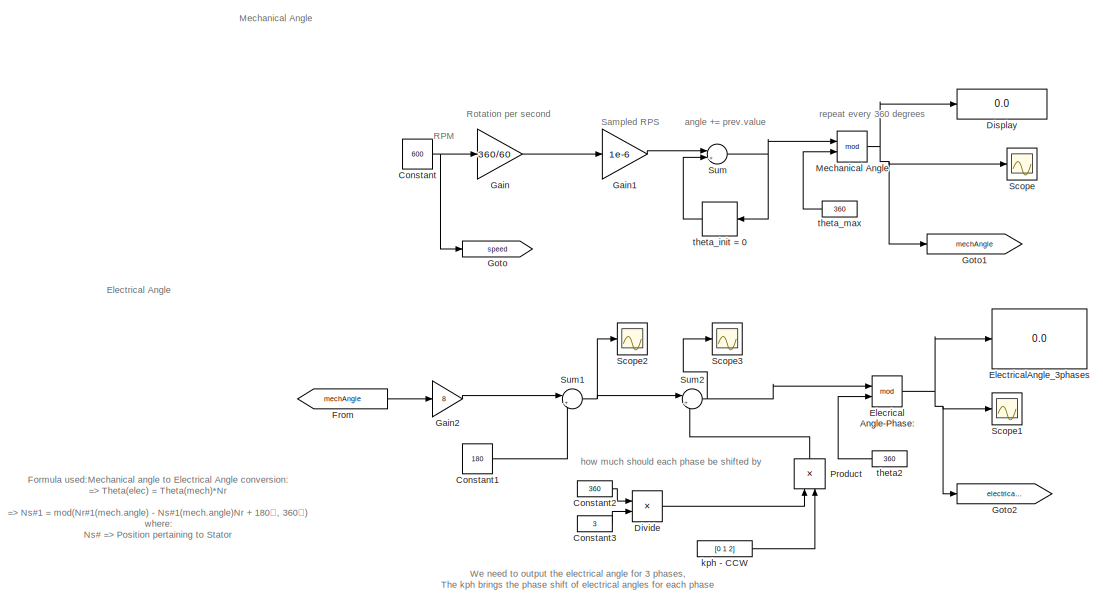
[diagram: root canvas - part 1/4, top left region]
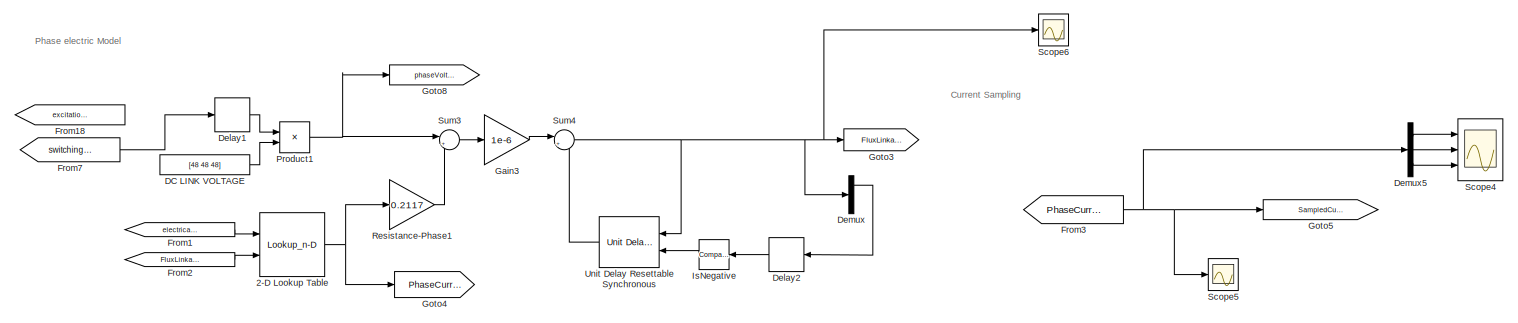
[diagram: root canvas - part 2/4, middle left region]
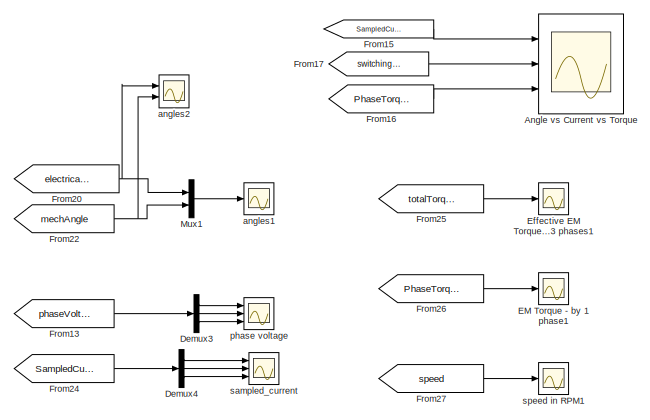
[diagram: root canvas - part 3/4, bottom right region]
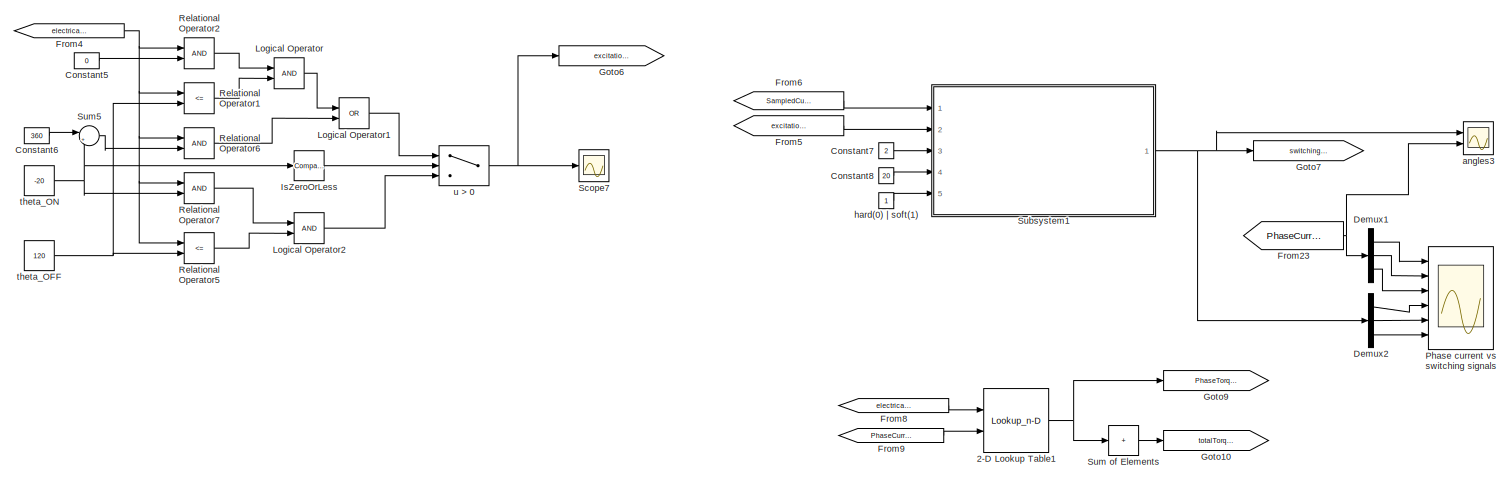
[diagram: root canvas - part 4/4, bottom center region]
MODEL slx_dab36eaa7ba9
KIND model
CONFIG AbsTol = auto
CONFIG EnableMultiTasking = off
CONFIG FixedStep = 1
CONFIG MaxStep = 1e-6
CONFIG MinStep = auto
CONFIG RelTol = 1e-6
CONFIG SampleTimeConstraint = Unconstrained
CONFIG SolverName = VariableStepAuto
CONFIG StartTime = 0.0
CONFIG StopTime = 1
BLOCK [Lookup_n-D] 2-D Lookup Table
  BreakpointsForDimension1 = angleArray
  BreakpointsForDimension2 = fluxdiv
  InputPortMap = u0,u1
  InternalRulePriority = Speed
  Ports = [2, 1]
  RndMeth = Simplest
  Table = iLUT
BLOCK [Lookup_n-D] 2-D Lookup Table1
  BreakpointsForDimension1 = angleArray
  BreakpointsForDimension2 = currentArray
  InputPortMap = u0,u1
  InternalRulePriority = Speed
  Ports = [2, 1]
  RndMeth = Simplest
  Table = torqueMatrix
BLOCK [Scope] Angle vs Current vs Torque
  Floating = off
  NumInputPorts = 3
  Ports = [3]
  ScopeSpecificationString = Simulink.scopes.TimeScopeBlockCfg('CurrentConfiguration', extmgr.ConfigurationSet(extmgr.Configuration('Core','General UI',true,'FigureColor',[0.831372549019608 0.815686274509804 0.784313725490196]),extmgr.Configuration('Core','Source UI',true),extmgr.Configuration('Sources','WiredSimulink',true,'DataLoggingVariableName','ScopeData1'),extmgr.Configuration('Visuals','Time Domain',true,'SerializedDi...<+3361ch>
BLOCK [Constant] Constant
  SampleTime = 1e-6
  Value = 600
BLOCK [Constant] Constant1
  SampleTime = 1e-6
  Value = 180
BLOCK [Constant] Constant2
  SampleTime = 1e-6
  Value = 360
BLOCK [Constant] Constant3
  SampleTime = 1e-6
  Value = 3
BLOCK [Constant] Constant5
  Value = 0
BLOCK [Constant] Constant6
  Value = 360
BLOCK [Constant] Constant7
  Value = 2
BLOCK [Constant] Constant8
  Value = 20
BLOCK [Constant] DC LINK VOLTAGE
  Value = [48 48 48]
BLOCK [Delay] Delay1
  DelayLength = 1
  InputPortMap = u0
  Ports = [1, 1]
BLOCK [Delay] Delay2
  DelayLength = 1
  InputPortMap = u0
  NameLocation = top
  Ports = [1, 1]
BLOCK [Demux] Demux
  Outputs = 3
  Ports = [1, 3]
BLOCK [Demux] Demux1
  Outputs = 3
  Ports = [1, 3]
BLOCK [Demux] Demux2
  Outputs = 3
  Ports = [1, 3]
BLOCK [Demux] Demux3
  Outputs = 3
  Ports = [1, 3]
BLOCK [Demux] Demux4
  Outputs = 3
  Ports = [1, 3]
BLOCK [Demux] Demux5
  Outputs = 3
  Ports = [1, 3]
BLOCK [Display] Display
  Decimation = 1
  Ports = [1]
BLOCK [Product] Divide
  Inputs = */
  Ports = [2, 1]
BLOCK [Scope] EM Torque - by 1 phase1
  Floating = off
  NumInputPorts = 1
  Ports = [1]
  ScopeSpecificationString = Simulink.scopes.TimeScopeBlockCfg('CurrentConfiguration', extmgr.ConfigurationSet(extmgr.Configuration('Core','General UI',true,'FigureColor',[0.831372549019608 0.815686274509804 0.784313725490196]),extmgr.Configuration('Core','Source UI',true),extmgr.Configuration('Sources','WiredSimulink',true,'DataLoggingVariableName','ScopeData9'),extmgr.Configuration('Visuals','Time Domain',true,'SerializedDi...<+1835ch>
BLOCK [Scope] Effective EM Torque - by 3 phases1
  Floating = off
  NumInputPorts = 1
  Ports = [1]
  ScopeSpecificationString = Simulink.scopes.TimeScopeBlockCfg('CurrentConfiguration', extmgr.ConfigurationSet(extmgr.Configuration('Core','General UI',true),extmgr.Configuration('Core','Source UI',true),extmgr.Configuration('Sources','WiredSimulink',true,'DataLoggingVariableName','ScopeData10'),extmgr.Configuration('Visuals','Time Domain',true,'SerializedDisplays',{struct('MinYLimReal','-20.03435','MaxYLimReal','20.39167','Y...<+1429ch>
BLOCK [Math] Elecrical Angle-Phase:
  Operator = mod
  Ports = [2, 1]
BLOCK [Display] ElectricalAngle_3phases
  Decimation = 1
  Ports = [1]
BLOCK [From] From
  GotoTag = mechAngle
BLOCK [From] From1
  GotoTag = electricalAngle
BLOCK [From] From13
  GotoTag = phaseVoltage
BLOCK [From] From15
  GotoTag = SampledCurrent
BLOCK [From] From16
  GotoTag = PhaseTorque
BLOCK [From] From17
  GotoTag = switchingSignal
BLOCK [From] From18
  GotoTag = excitationalSignal
BLOCK [From] From2
  GotoTag = FluxLinkage
BLOCK [From] From20
  GotoTag = electricalAngle
BLOCK [From] From22
  GotoTag = mechAngle
BLOCK [From] From23
  GotoTag = PhaseCurrent
BLOCK [From] From24
  GotoTag = SampledCurrent
BLOCK [From] From25
  GotoTag = totalTorque
BLOCK [From] From26
  GotoTag = PhaseTorque
BLOCK [From] From27
  GotoTag = speed
BLOCK [From] From3
  GotoTag = PhaseCurrent
BLOCK [From] From4
  GotoTag = electricalAngle
BLOCK [From] From5
  GotoTag = excitationalSignal
BLOCK [From] From6
  GotoTag = SampledCurrent
BLOCK [From] From7
  GotoTag = switchingSignal
BLOCK [From] From8
  GotoTag = electricalAngle
BLOCK [From] From9
  GotoTag = PhaseCurrent
BLOCK [Gain] Gain
  Gain = 360/60
BLOCK [Gain] Gain1
  Gain = 1e-6
BLOCK [Gain] Gain2
  Gain = 8
BLOCK [Gain] Gain3
  Gain = 1e-6
BLOCK [Goto] Goto
  GotoTag = speed
BLOCK [Goto] Goto1
  GotoTag = mechAngle
BLOCK [Goto] Goto10
  GotoTag = totalTorque
BLOCK [Goto] Goto2
  GotoTag = electricalAngle
BLOCK [Goto] Goto3
  GotoTag = FluxLinkage
BLOCK [Goto] Goto4
  GotoTag = PhaseCurrent
BLOCK [Goto] Goto5
  GotoTag = SampledCurrent
BLOCK [Goto] Goto6
  GotoTag = excitationalSignal
BLOCK [Goto] Goto7
  GotoTag = switchingSignal
BLOCK [Goto] Goto8
  GotoTag = phaseVoltage
BLOCK [Goto] Goto9
  GotoTag = PhaseTorque
BLOCK [Reference] IsNegative  REF=simulink/Logic and Bit
Operations/Compare
To Zero
  NameLocation = top
  Ports = [1, 1]
  SourceBlock = simulink/Logic and Bit\nOperations/Compare\nTo Zero
  SourceProductBaseCode = SL
  SourceType = Compare To Zero
BLOCK [Reference] IsZeroOrLess  REF=simulink/Logic and Bit
Operations/Compare
To Zero
  Ports = [1, 1]
  SourceBlock = simulink/Logic and Bit\nOperations/Compare\nTo Zero
  SourceProductBaseCode = SL
  SourceType = Compare To Zero
BLOCK [Logic] Logical Operator
  AllPortsSameDT = off
  OutDataTypeStr = boolean
  Ports = [2, 1]
BLOCK [Logic] Logical Operator1
  AllPortsSameDT = off
  Operator = OR
  OutDataTypeStr = boolean
  Ports = [2, 1]
BLOCK [Logic] Logical Operator2
  AllPortsSameDT = off
  OutDataTypeStr = boolean
  Ports = [2, 1]
BLOCK [Math] Mechanical Angle
  Operator = mod
  Ports = [2, 1]
BLOCK [Mux] Mux1
  DisplayOption = bar
  Inputs = 2
  Ports = [2, 1]
BLOCK [Scope] Phase current vs switching signals
  Floating = off
  NameLocation = right
  NumInputPorts = 6
  Ports = [6]
  ScopeSpecificationString = Simulink.scopes.TimeScopeBlockCfg('CurrentConfiguration', extmgr.ConfigurationSet(extmgr.Configuration('Core','General UI',true),extmgr.Configuration('Core','Source UI',true),extmgr.Configuration('Sources','WiredSimulink',true,'DataLoggingVariableName','ScopeData12'),extmgr.Configuration('Visuals','Time Domain',true,'SerializedDisplays',{struct('MinYLimReal','-2.61314','MaxYLimReal','23.08169','YL...<+4829ch>
BLOCK [Product] Product
  NameLocation = right
  Ports = [2, 1]
BLOCK [Product] Product1
  Ports = [2, 1]
BLOCK [RelationalOperator] Relational Operator1
  InputSameDT = off
  Operator = <=
  OutDataTypeStr = boolean
  Ports = [2, 1]
  RndMeth = Simplest
BLOCK [RelationalOperator] Relational Operator2
  InputSameDT = off
  OutDataTypeStr = boolean
  Ports = [2, 1]
  RndMeth = Simplest
BLOCK [RelationalOperator] Relational Operator5
  InputSameDT = off
  Operator = <=
  OutDataTypeStr = boolean
  Ports = [2, 1]
  RndMeth = Simplest
BLOCK [RelationalOperator] Relational Operator6
  InputSameDT = off
  OutDataTypeStr = boolean
  Ports = [2, 1]
  RndMeth = Simplest
BLOCK [RelationalOperator] Relational Operator7
  InputSameDT = off
  OutDataTypeStr = boolean
  Ports = [2, 1]
  RndMeth = Simplest
BLOCK [Gain] Resistance-Phase1
  Gain = 0.2117
BLOCK [Scope] Scope
  Floating = off
  NumInputPorts = 1
  Ports = [1]
  ScopeSpecificationString = Simulink.scopes.TimeScopeBlockCfg('CurrentConfiguration', extmgr.ConfigurationSet(extmgr.Configuration('Core','General UI',true),extmgr.Configuration('Core','Source UI',true),extmgr.Configuration('Sources','WiredSimulink',true),extmgr.Configuration('Visuals','Time Domain',true,'SerializedDisplays',{struct('MinYLimReal','-44.9991','MaxYLimReal','404.9919','YLabelReal','','MinYLimMag','0.00000','Max...<+1619ch>
BLOCK [Scope] Scope1
  Floating = off
  NumInputPorts = 1
  Ports = [1]
  ScopeSpecificationString = Simulink.scopes.TimeScopeBlockCfg('CurrentConfiguration', extmgr.ConfigurationSet(extmgr.Configuration('Core','General UI',true),extmgr.Configuration('Core','Source UI',true),extmgr.Configuration('Sources','WiredSimulink',true,'DataLoggingVariableName','ScopeData1'),extmgr.Configuration('Visuals','Time Domain',true,'SerializedDisplays',{struct('MinYLimReal','-44.9991','MaxYLimReal','404.9919','YLa...<+1491ch>
BLOCK [Scope] Scope2
  Floating = off
  NumInputPorts = 1
  Ports = [1]
  ScopeSpecificationString = Simulink.scopes.TimeScopeBlockCfg('CurrentConfiguration', extmgr.ConfigurationSet(extmgr.Configuration('Core','General UI',true),extmgr.Configuration('Core','Source UI',true),extmgr.Configuration('Sources','WiredSimulink',true,'DataLoggingVariableName','ScopeData1'),extmgr.Configuration('Visuals','Time Domain',true,'SerializedDisplays',{struct('MinYLimReal','-44.9991','MaxYLimReal','3059.9424','YL...<+1455ch>
BLOCK [Scope] Scope3
  Floating = off
  NumInputPorts = 1
  Ports = [1]
  ScopeSpecificationString = Simulink.scopes.TimeScopeBlockCfg('CurrentConfiguration', extmgr.ConfigurationSet(extmgr.Configuration('Core','General UI',true),extmgr.Configuration('Core','Source UI',true),extmgr.Configuration('Sources','WiredSimulink',true,'DataLoggingVariableName','ScopeData2'),extmgr.Configuration('Visuals','Time Domain',true,'SerializedDisplays',{struct('MinYLimReal','2633.25256','MaxYLimReal','2909.82092',...<+1478ch>
BLOCK [Scope] Scope4
  Floating = off
  NumInputPorts = 3
  Ports = [3]
  ScopeSpecificationString = Simulink.scopes.TimeScopeBlockCfg('CurrentConfiguration', extmgr.ConfigurationSet(extmgr.Configuration('Core','General UI',true),extmgr.Configuration('Core','Source UI',true),extmgr.Configuration('Sources','WiredSimulink',true,'DataLoggingVariableName','ScopeData1'),extmgr.Configuration('Visuals','Time Domain',true,'SerializedDisplays',{struct('MinYLimReal','-476.5626','MaxYLimReal','4289.06342','...<+2873ch>
BLOCK [Scope] Scope5
  Floating = off
  NumInputPorts = 1
  Ports = [1]
  ScopeSpecificationString = Simulink.scopes.TimeScopeBlockCfg('CurrentConfiguration', extmgr.ConfigurationSet(extmgr.Configuration('Core','General UI',true),extmgr.Configuration('Core','Source UI',true),extmgr.Configuration('Sources','WiredSimulink',true,'DataLoggingVariableName','ScopeData1'),extmgr.Configuration('Visuals','Time Domain',true,'SerializedDisplays',{struct('MinYLimReal','-2.63396','MaxYLimReal','23.08929','YLa...<+1523ch>
BLOCK [Scope] Scope6
  Floating = off
  NumInputPorts = 1
  Ports = [1]
  ScopeSpecificationString = Simulink.scopes.TimeScopeBlockCfg('CurrentConfiguration', extmgr.ConfigurationSet(extmgr.Configuration('Core','General UI',true,'FigureColor',[0.8 0.8 0.8]),extmgr.Configuration('Core','Source UI',true),extmgr.Configuration('Sources','WiredSimulink',true,'DataLoggingVariableName','ScopeData4'),extmgr.Configuration('Visuals','Time Domain',true,'SerializedDisplays',{struct('MinYLimReal','-0.73701','...<+1650ch>
BLOCK [Scope] Scope7
  Floating = off
  NumInputPorts = 1
  Ports = [1]
  ScopeSpecificationString = Simulink.scopes.TimeScopeBlockCfg('CurrentConfiguration', extmgr.ConfigurationSet(extmgr.Configuration('Core','General UI',true,'FigureColor',[0.8 0.8 0.8]),extmgr.Configuration('Core','Source UI',true),extmgr.Configuration('Sources','WiredSimulink',true,'DataLoggingVariableName','ScopeData5'),extmgr.Configuration('Visuals','Time Domain',true,'SerializedDisplays',{struct('MinYLimReal','-0.00251','...<+1654ch>
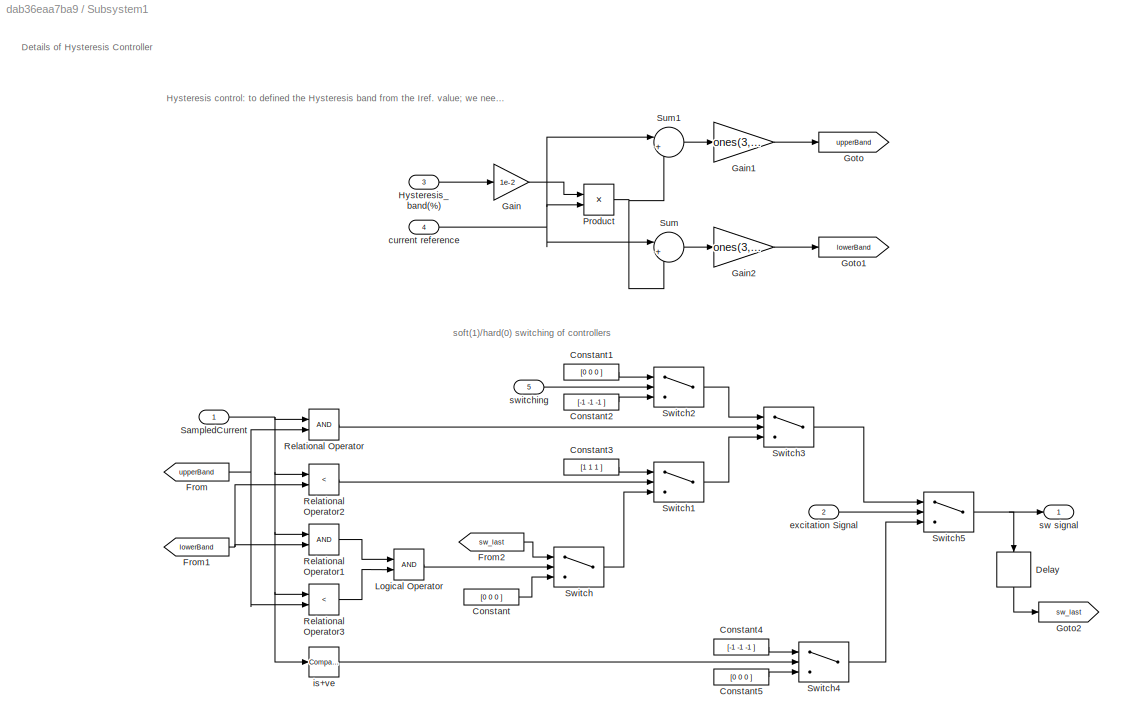
BLOCK [SubSystem] Subsystem1
  Ports = [5, 1]
  RequestExecContextInheritance = off
BLOCK [Constant] Subsystem1/Constant
  Value = [0 0 0 ]
BLOCK [Constant] Subsystem1/Constant1
  Value = [0 0 0 ]
BLOCK [Constant] Subsystem1/Constant2
  Value = [-1 -1 -1 ]
BLOCK [Constant] Subsystem1/Constant3
  Value = [1 1 1 ]
BLOCK [Constant] Subsystem1/Constant4
  Value = [-1 -1 -1 ]
BLOCK [Constant] Subsystem1/Constant5
  Value = [0 0 0 ]
BLOCK [Delay] Subsystem1/Delay
  DelayLength = 1
  InputPortMap = u0
  NameLocation = left
  Ports = [1, 1]
BLOCK [From] Subsystem1/From
  GotoTag = upperBand
BLOCK [From] Subsystem1/From1
  GotoTag = lowerBand
BLOCK [From] Subsystem1/From2
  GotoTag = sw_last
  NameLocation = top
BLOCK [Gain] Subsystem1/Gain
  Gain = 1e-2
BLOCK [Gain] Subsystem1/Gain1
  Gain = ones(3,1)
BLOCK [Gain] Subsystem1/Gain2
  Gain = ones(3,1)
BLOCK [Goto] Subsystem1/Goto
  GotoTag = upperBand
BLOCK [Goto] Subsystem1/Goto1
  GotoTag = lowerBand
BLOCK [Goto] Subsystem1/Goto2
  GotoTag = sw_last
BLOCK [Inport] Subsystem1/Hysteresis_band(%)
  Port = 3
BLOCK [Logic] Subsystem1/Logical Operator
  AllPortsSameDT = off
  OutDataTypeStr = boolean
  Ports = [2, 1]
BLOCK [Product] Subsystem1/Product
  Ports = [2, 1]
BLOCK [RelationalOperator] Subsystem1/Relational Operator
  InputSameDT = off
  OutDataTypeStr = boolean
  Ports = [2, 1]
  RndMeth = Simplest
BLOCK [RelationalOperator] Subsystem1/Relational Operator1
  InputSameDT = off
  OutDataTypeStr = boolean
  Ports = [2, 1]
  RndMeth = Simplest
BLOCK [RelationalOperator] Subsystem1/Relational Operator2
  InputSameDT = off
  Operator = <
  OutDataTypeStr = boolean
  Ports = [2, 1]
  RndMeth = Simplest
BLOCK [RelationalOperator] Subsystem1/Relational Operator3
  InputSameDT = off
  Operator = <
  OutDataTypeStr = boolean
  Ports = [2, 1]
  RndMeth = Simplest
BLOCK [Inport] Subsystem1/SampledCurrent
BLOCK [Sum] Subsystem1/Sum
  Inputs = |+-
  Ports = [2, 1]
BLOCK [Sum] Subsystem1/Sum1
  Inputs = |++
  NameLocation = top
  Ports = [2, 1]
BLOCK [Switch] Subsystem1/Switch
  Criteria = u2 > Threshold
  InputSameDT = off
  NameLocation = top
  SaturateOnIntegerOverflow = off
BLOCK [Switch] Subsystem1/Switch1
  Criteria = u2 > Threshold
  InputSameDT = off
  SaturateOnIntegerOverflow = off
BLOCK [Switch] Subsystem1/Switch2
  Criteria = u2 > Threshold
  InputSameDT = off
  SaturateOnIntegerOverflow = off
BLOCK [Switch] Subsystem1/Switch3
  Criteria = u2 > Threshold
  InputSameDT = off
  SaturateOnIntegerOverflow = off
BLOCK [Switch] Subsystem1/Switch4
  Criteria = u2 > Threshold
  InputSameDT = off
  SaturateOnIntegerOverflow = off
BLOCK [Switch] Subsystem1/Switch5
  Criteria = u2 > Threshold
  InputSameDT = off
  SaturateOnIntegerOverflow = off
BLOCK [Inport] Subsystem1/current reference
  Port = 4
BLOCK [Inport] Subsystem1/excitation Signal
  Port = 2
BLOCK [Reference] Subsystem1/is+ve  REF=simulink/Logic and Bit
Operations/Compare
To Zero
  Ports = [1, 1]
  SourceBlock = simulink/Logic and Bit\nOperations/Compare\nTo Zero
  SourceProductBaseCode = SL
  SourceType = Compare To Zero
BLOCK [Outport] Subsystem1/sw signal
BLOCK [Inport] Subsystem1/switching
  Port = 5
BLOCK [Sum] Sum
  Inputs = |++
  Ports = [2, 1]
BLOCK [Sum] Sum of Elements
  IconShape = rectangular
  Inputs = +
  Ports = [1, 1]
BLOCK [Sum] Sum1
  Inputs = |++
  Ports = [2, 1]
BLOCK [Sum] Sum2
  Inputs = |++
  Ports = [2, 1]
BLOCK [Sum] Sum3
  Inputs = |+-
  Ports = [2, 1]
  RndMeth = Round
BLOCK [Sum] Sum4
  Inputs = |++
  Ports = [2, 1]
BLOCK [Sum] Sum5
  Inputs = |++
  Ports = [2, 1]
BLOCK [Reference] Unit Delay Resettable Synchronous  REF=hdlsllib/Discrete/Unit Delay Resettable
Synchronous
  NameLocation = top
  Ports = [2, 1]
  SourceBlock = hdlsllib/Discrete/Unit Delay Resettable\nSynchronous
  SourceProductBaseCode = SL
  SourceType = Unit Delay Resettable Synchronous
BLOCK [Scope] angles1
  Floating = off
  NumInputPorts = 1
  Ports = [1]
  ScopeSpecificationString = Simulink.scopes.TimeScopeBlockCfg('CurrentConfiguration', extmgr.ConfigurationSet(extmgr.Configuration('Core','General UI',true),extmgr.Configuration('Core','Source UI',true),extmgr.Configuration('Sources','WiredSimulink',true,'DataLoggingVariableName','ScopeData11'),extmgr.Configuration('Visuals','Time Domain',true,'SerializedDisplays',{struct('MinYLimReal','-45.00000','MaxYLimReal','405.00000','...<+1513ch>
BLOCK [Scope] angles2
  Floating = off
  NumInputPorts = 2
  Ports = [2]
  ScopeSpecificationString = Simulink.scopes.TimeScopeBlockCfg('CurrentConfiguration', extmgr.ConfigurationSet(extmgr.Configuration('Core','General UI',true,'FigureColor',[0.8 0.8 0.8]),extmgr.Configuration('Core','Source UI',true),extmgr.Configuration('Sources','WiredSimulink',true,'DataLoggingVariableName','ScopeData2'),extmgr.Configuration('Visuals','Time Domain',true,'SerializedDisplays',{struct('MinYLimReal','-45.00000',...<+2312ch>
BLOCK [Scope] angles3
  Floating = off
  NumInputPorts = 2
  Ports = [2]
  ScopeSpecificationString = Simulink.scopes.TimeScopeBlockCfg('CurrentConfiguration', extmgr.ConfigurationSet(extmgr.Configuration('Core','General UI',true,'FigureColor',[0.8 0.8 0.8]),extmgr.Configuration('Core','Source UI',true),extmgr.Configuration('Sources','WiredSimulink',true,'DataLoggingVariableName','ScopeData3'),extmgr.Configuration('Visuals','Time Domain',true,'SerializedDisplays',{struct('MinYLimReal','-1.25','Max...<+2325ch>
BLOCK [Constant] hard(0) | soft(1)
BLOCK [Constant] kph - CCW
  SampleTime = 1e-6
  Value = [0 1 2]
BLOCK [Scope] phase voltage
  Floating = off
  NameLocation = right
  NumInputPorts = 3
  Ports = [3]
  ScopeSpecificationString = Simulink.scopes.TimeScopeBlockCfg('CurrentConfiguration', extmgr.ConfigurationSet(extmgr.Configuration('Core','General UI',true),extmgr.Configuration('Core','Source UI',true),extmgr.Configuration('Sources','WiredSimulink',true,'DataLoggingVariableName','ScopeData2'),extmgr.Configuration('Visuals','Time Domain',true,'SerializedDisplays',{struct('MinYLimReal','-31.76638','MaxYLimReal','60.76343','YL...<+1449ch>
BLOCK [Scope] sampled_current
  Floating = off
  NumInputPorts = 3
  Ports = [3]
  ScopeSpecificationString = Simulink.scopes.TimeScopeBlockCfg('CurrentConfiguration', extmgr.ConfigurationSet(extmgr.Configuration('Core','General UI',true),extmgr.Configuration('Core','Source UI',true),extmgr.Configuration('Sources','WiredSimulink',true,'DataLoggingVariableName','ScopeData13'),extmgr.Configuration('Visuals','Time Domain',true,'SerializedDisplays',{struct('MinYLimReal','-395.76199','MaxYLimReal','3561.85794'...<+2933ch>
BLOCK [Scope] speed in RPM1
  Floating = off
  NumInputPorts = 1
  Ports = [1]
  ScopeSpecificationString = Simulink.scopes.TimeScopeBlockCfg('CurrentConfiguration', extmgr.ConfigurationSet(extmgr.Configuration('Core','General UI',true),extmgr.Configuration('Core','Source UI',true),extmgr.Configuration('Sources','WiredSimulink',true,'DataLoggingVariableName','ScopeData14'),extmgr.Configuration('Visuals','Time Domain',true,'SerializedDisplays',{struct('MinYLimReal','500.00000','MaxYLimReal','700.00000','...<+1409ch>
BLOCK [Constant] theta2
  NameLocation = top
  SampleTime = 1e-6
  Value = 360
BLOCK [Constant] theta_OFF
  Value = 120
BLOCK [Constant] theta_ON
  Value = -20
BLOCK [Delay] theta_init = 0
  DelayLength = 1
  InitialCondition = 0
  InputPortMap = u0
  Ports = [1, 1]
BLOCK [Constant] theta_max
  NameLocation = top
  SampleTime = 1e-6
  Value = 360
BLOCK [Switch] u > 0
  Criteria = u2 > Threshold
  InputSameDT = off
  SaturateOnIntegerOverflow = off
ANNOTATION (root): Current Sampling
ANNOTATION (root): Electrical Angle
ANNOTATION (root): Formula used:Mechanical angle to Electrical Angle conversion: => Theta(elec) = Theta(mech)*Nr => Ns#1 = mod(Nr#1(mech.angle) - Ns#1(mech.angle)Nr + 180⁰, 360⁰) where: Ns# => Position pertaining to Stator #1 => phase 1 Nr# => Position pertaining to Rotor Nr => number of rotor teeth
ANNOTATION (root): Mechanical Angle
ANNOTATION (root): Phase electric Model
ANNOTATION (root): RPM
ANNOTATION (root): Rotation per second
ANNOTATION (root): Sampled RPS
ANNOTATION (root): We need to output the electrical angle for 3 phases, The kph brings the phase shift of electrical angles for each phase
ANNOTATION (root): angle += prev.value
ANNOTATION (root): how much should each phase be shifted by
ANNOTATION (root): repeat every 360 degrees
ANNOTATION Subsystem1: Details of Hysteresis Controller
ANNOTATION Subsystem1: Hysteresis control: to defined the Hysteresis band from the Iref. value; we need to generate for all 3 phases
ANNOTATION Subsystem1: soft(1)/hard(0) switching of controllers
NET 2-D Lookup Table1:1 -> Goto9:1, Sum of Elements:1
NET 2-D Lookup Table:1 -> Goto4:1, Resistance-Phase1:1
LINE Constant1:1 -> Sum1:2
LINE Constant2:1 -> Divide:1
LINE Constant3:1 -> Divide:2
LINE Constant5:1 -> Relational Operator2:2
LINE Constant6:1 -> Sum5:1
LINE Constant7:1 -> Subsystem1:3
LINE Constant8:1 -> Subsystem1:4
NET Constant:1 -> Gain:1, Goto:1
LINE DC LINK VOLTAGE:1 -> Product1:2
LINE Delay1:1 -> Product1:1
LINE Delay2:1 -> IsNegative:1
LINE Demux1:1 -> Phase current vs switching signals:1
LINE Demux1:2 -> Phase current vs switching signals:2
LINE Demux1:3 -> Phase current vs switching signals:3
LINE Demux2:1 -> Phase current vs switching signals:4
LINE Demux2:2 -> Phase current vs switching signals:5
LINE Demux2:3 -> Phase current vs switching signals:6
LINE Demux3:1 -> phase voltage:1
LINE Demux3:2 -> phase voltage:2
LINE Demux3:3 -> phase voltage:3
LINE Demux4:1 -> sampled_current:1
LINE Demux4:2 -> sampled_current:2
LINE Demux4:3 -> sampled_current:3
LINE Demux5:1 -> Scope4:1
LINE Demux5:2 -> Scope4:2
LINE Demux5:3 -> Scope4:3
LINE Demux:1 -> Delay2:1
LINE Divide:1 -> Product:1
NET Elecrical Angle-Phase::1 -> ElectricalAngle_3phases:1, Goto2:1, Scope1:1
LINE From13:1 -> Demux3:1
LINE From15:1 -> Angle vs Current vs Torque:1
LINE From16:1 -> Angle vs Current vs Torque:3
LINE From17:1 -> Angle vs Current vs Torque:2
LINE From1:1 -> 2-D Lookup Table:1
NET From20:1 -> Mux1:1, angles2:1
NET From22:1 -> Mux1:2, angles2:2
NET From23:1 -> Demux1:1, angles3:2
LINE From24:1 -> Demux4:1
LINE From25:1 -> Effective EM Torque - by 3 phases1:1
LINE From26:1 -> EM Torque - by 1 phase1:1
LINE From27:1 -> speed in RPM1:1
LINE From2:1 -> 2-D Lookup Table:2
NET From3:1 -> Demux5:1, Goto5:1, Scope5:1
NET From4:1 -> Relational Operator1:1, Relational Operator2:1, Relational Operator5:1, Relational Operator6:1, Relational Operator7:1
LINE From5:1 -> Subsystem1:2
LINE From6:1 -> Subsystem1:1
LINE From7:1 -> Delay1:1
LINE From8:1 -> 2-D Lookup Table1:1
LINE From9:1 -> 2-D Lookup Table1:2
LINE From:1 -> Gain2:1
LINE Gain1:1 -> Sum:1
LINE Gain2:1 -> Sum1:1
LINE Gain3:1 -> Sum4:1
LINE Gain:1 -> Gain1:1
LINE IsNegative:1 -> Unit Delay Resettable Synchronous:2
LINE IsZeroOrLess:1 -> u > 0:2
LINE Logical Operator1:1 -> u > 0:1
LINE Logical Operator2:1 -> u > 0:3
LINE Logical Operator:1 -> Logical Operator1:1
NET Mechanical Angle:1 -> Display:1, Goto1:1, Scope:1
LINE Mux1:1 -> angles1:1
NET Product1:1 -> Goto8:1, Sum3:1
LINE Product:1 -> Sum2:2
LINE Relational Operator1:1 -> Logical Operator:2
LINE Relational Operator2:1 -> Logical Operator:1
LINE Relational Operator5:1 -> Logical Operator2:2
LINE Relational Operator6:1 -> Logical Operator1:2
LINE Relational Operator7:1 -> Logical Operator2:1
LINE Resistance-Phase1:1 -> Sum3:2
LINE Subsystem1/Constant1:1 -> Subsystem1/Switch2:1
LINE Subsystem1/Constant2:1 -> Subsystem1/Switch2:3
LINE Subsystem1/Constant3:1 -> Subsystem1/Switch1:1
LINE Subsystem1/Constant4:1 -> Subsystem1/Switch4:1
LINE Subsystem1/Constant5:1 -> Subsystem1/Switch4:3
LINE Subsystem1/Constant:1 -> Subsystem1/Switch:3
LINE Subsystem1/Delay:1 -> Subsystem1/Goto2:1
NET Subsystem1/From1:1 -> Subsystem1/Relational Operator1:2, Subsystem1/Relational Operator2:2
LINE Subsystem1/From2:1 -> Subsystem1/Switch:1
NET Subsystem1/From:1 -> Subsystem1/Relational Operator3:2, Subsystem1/Relational Operator:2
LINE Subsystem1/Gain1:1 -> Subsystem1/Goto:1
LINE Subsystem1/Gain2:1 -> Subsystem1/Goto1:1
LINE Subsystem1/Gain:1 -> Subsystem1/Product:1
LINE Subsystem1/Hysteresis_band(%):1 -> Subsystem1/Gain:1
LINE Subsystem1/Logical Operator:1 -> Subsystem1/Switch:2
NET Subsystem1/Product:1 -> Subsystem1/Sum1:2, Subsystem1/Sum:2
LINE Subsystem1/Relational Operator1:1 -> Subsystem1/Logical Operator:1
LINE Subsystem1/Relational Operator2:1 -> Subsystem1/Switch1:2
LINE Subsystem1/Relational Operator3:1 -> Subsystem1/Logical Operator:2
LINE Subsystem1/Relational Operator:1 -> Subsystem1/Switch3:2
NET Subsystem1/SampledCurrent:1 -> Subsystem1/Relational Operator1:1, Subsystem1/Relational Operator2:1, Subsystem1/Relational Operator3:1, Subsystem1/Relational Operator:1, Subsystem1/is+ve:1
LINE Subsystem1/Sum1:1 -> Subsystem1/Gain1:1
LINE Subsystem1/Sum:1 -> Subsystem1/Gain2:1
LINE Subsystem1/Switch1:1 -> Subsystem1/Switch3:3
LINE Subsystem1/Switch2:1 -> Subsystem1/Switch3:1
LINE Subsystem1/Switch3:1 -> Subsystem1/Switch5:1
LINE Subsystem1/Switch4:1 -> Subsystem1/Switch5:3
NET Subsystem1/Switch5:1 -> Subsystem1/Delay:1, Subsystem1/sw signal:1
LINE Subsystem1/Switch:1 -> Subsystem1/Switch1:3
NET Subsystem1/current reference:1 -> Subsystem1/Product:2, Subsystem1/Sum1:1, Subsystem1/Sum:1
LINE Subsystem1/excitation Signal:1 -> Subsystem1/Switch5:2
LINE Subsystem1/is+ve:1 -> Subsystem1/Switch4:2
LINE Subsystem1/switching:1 -> Subsystem1/Switch2:2
NET Subsystem1:1 -> Demux2:1, Goto7:1, angles3:1
LINE Sum of Elements:1 -> Goto10:1
NET Sum1:1 -> Scope2:1, Sum2:1
NET Sum2:1 -> Elecrical Angle-Phase::1, Scope3:1
LINE Sum3:1 -> Gain3:1
NET Sum4:1 -> Demux:1, Goto3:1, Scope6:1, Unit Delay Resettable Synchronous:1
LINE Sum5:1 -> Relational Operator6:2
NET Sum:1 -> Mechanical Angle:1, theta_init = 0:1
LINE Unit Delay Resettable Synchronous:1 -> Sum4:2
LINE hard(0) | soft(1):1 -> Subsystem1:5
LINE kph - CCW:1 -> Product:2
LINE theta2:1 -> Elecrical Angle-Phase::2
NET theta_OFF:1 -> Relational Operator1:2, Relational Operator5:2
NET theta_ON:1 -> IsZeroOrLess:1, Relational Operator7:2, Sum5:2
LINE theta_init = 0:1 -> Sum:2
LINE theta_max:1 -> Mechanical Angle:2
NET u > 0:1 -> Goto6:1, Scope7:1
note: NET lines group one-source signal fan-out (src -> all destinations, sorted); 1:1 wires keep LINE
